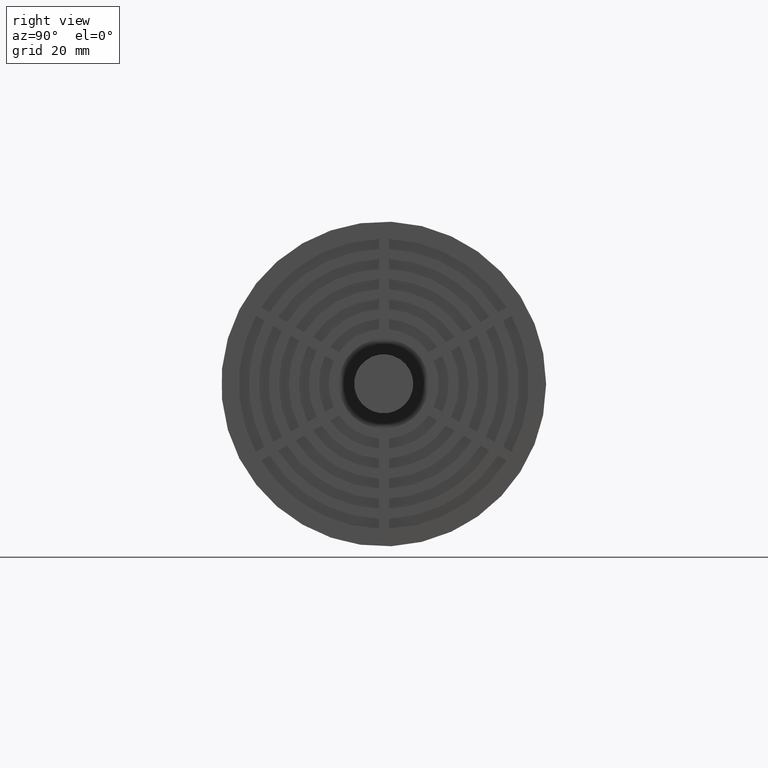
[diagram: clean part render]
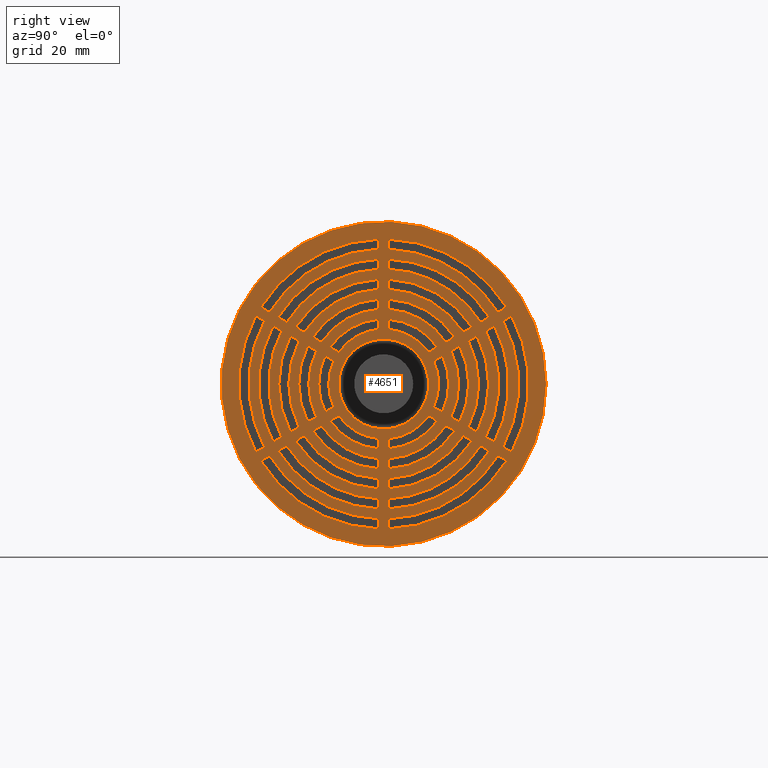
[diagram: same view with one face highlighted and labeled with its STEP entity id]
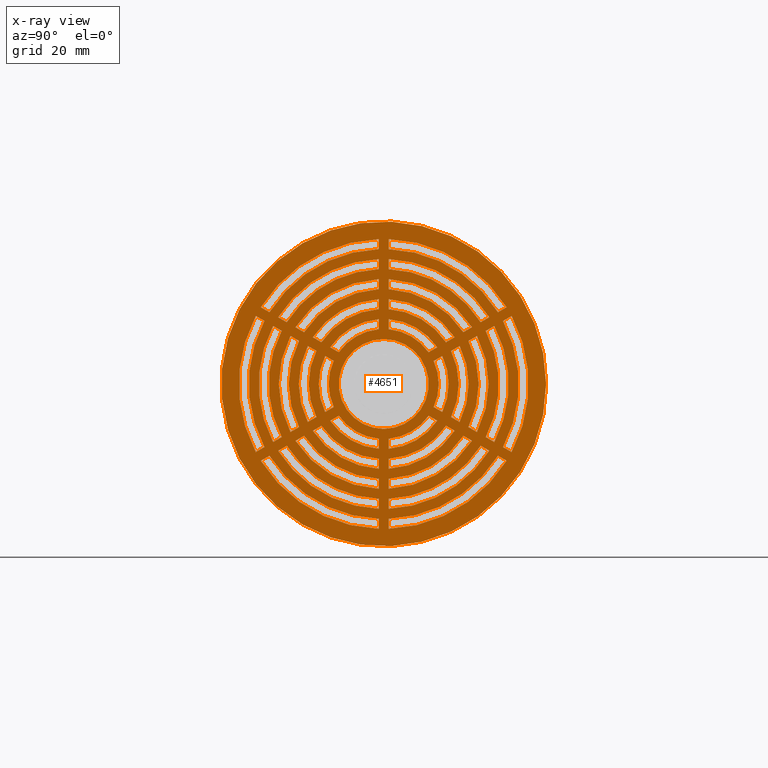
[diagram: x-ray of the same camera — body ghosted, the highlighted face saturated]
A machine part, right view. The second image highlights one B-rep face of the part: STEP entity #4651.
The next image is the same camera in x-ray: the body ghosted, the highlighted face saturated — about 0% of this face is hidden behind the body in this view.
In plain terms, the highlighted planar face has unit normal (1, 0, 0).
Its self-contained STEP definition (entity closure, byte-faithful):
#128=LINE('',#6796,#560);
#134=LINE('',#6808,#566);
#138=LINE('',#6817,#570);
#142=LINE('',#6826,#574);
#146=LINE('',#6835,#578);
#148=LINE('',#6841,#580);
#154=LINE('',#6853,#586);
#156=LINE('',#6859,#588);
#160=LINE('',#6868,#592);
#164=LINE('',#6877,#596);
#168=LINE('',#6886,#600);
#174=LINE('',#6898,#606);
#178=LINE('',#6907,#610);
#182=LINE('',#6916,#614);
#186=LINE('',#6925,#618);
#188=LINE('',#6931,#620);
#194=LINE('',#6943,#626);
#196=LINE('',#6949,#628);
#200=LINE('',#6958,#632);
#204=LINE('',#6967,#636);
#208=LINE('',#6976,#640);
#214=LINE('',#6988,#646);
#218=LINE('',#6997,#650);
#222=LINE('',#7006,#654);
#226=LINE('',#7015,#658);
#228=LINE('',#7021,#660);
#234=LINE('',#7033,#666);
#236=LINE('',#7039,#668);
#240=LINE('',#7048,#672);
#244=LINE('',#7057,#676);
#248=LINE('',#7066,#680);
#254=LINE('',#7078,#686);
#258=LINE('',#7087,#690);
#262=LINE('',#7096,#694);
#266=LINE('',#7105,#698);
#268=LINE('',#7111,#700);
#274=LINE('',#7123,#706);
#276=LINE('',#7129,#708);
#280=LINE('',#7138,#712);
#284=LINE('',#7147,#716);
#288=LINE('',#7156,#720);
#294=LINE('',#7168,#726);
#298=LINE('',#7177,#730);
#302=LINE('',#7186,#734);
#306=LINE('',#7195,#738);
#308=LINE('',#7201,#740);
#314=LINE('',#7213,#746);
#316=LINE('',#7219,#748);
#320=LINE('',#7228,#752);
#324=LINE('',#7237,#756);
#357=LINE('',#7494,#789);
#358=LINE('',#7495,#790);
#359=LINE('',#7496,#791);
#360=LINE('',#7497,#792);
#361=LINE('',#7506,#793);
#362=LINE('',#7507,#794);
#363=LINE('',#7508,#795);
#364=LINE('',#7509,#796);
#365=LINE('',#7510,#797);
#366=LINE('',#7511,#798);
#560=VECTOR('',#5338,2.00127836591479);
#566=VECTOR('',#5346,2.00174140744148);
#570=VECTOR('',#5352,2.00251100239276);
#574=VECTOR('',#5358,2.00393320138137);
#578=VECTOR('',#5364,2.0070302467124);
#580=VECTOR('',#5368,2.00174140744148);
#586=VECTOR('',#5376,2.00127836591479);
#588=VECTOR('',#5380,2.00251100239276);
#592=VECTOR('',#5386,2.00393320138137);
#596=VECTOR('',#5392,2.0070302467124);
#600=VECTOR('',#5398,2.00127836591479);
#606=VECTOR('',#5406,2.00174140744148);
#610=VECTOR('',#5412,2.00251100239275);
#614=VECTOR('',#5418,2.00393320138137);
#618=VECTOR('',#5424,2.0070302467124);
#620=VECTOR('',#5428,2.00174140744148);
#626=VECTOR('',#5436,2.00127836591479);
#628=VECTOR('',#5440,2.00251100239276);
#632=VECTOR('',#5446,2.00393320138137);
#636=VECTOR('',#5452,2.0070302467124);
#640=VECTOR('',#5458,2.00127836591479);
#646=VECTOR('',#5466,2.00174140744148);
#650=VECTOR('',#5472,2.00251100239276);
#654=VECTOR('',#5478,2.00393320138138);
#658=VECTOR('',#5484,2.0070302467124);
#660=VECTOR('',#5488,2.00174140744148);
#666=VECTOR('',#5496,2.00127836591479);
#668=VECTOR('',#5500,2.00251100239276);
#672=VECTOR('',#5506,2.00393320138137);
#676=VECTOR('',#5512,2.0070302467124);
#680=VECTOR('',#5518,2.00127836591479);
#686=VECTOR('',#5526,2.00174140744148);
#690=VECTOR('',#5532,2.00251100239276);
#694=VECTOR('',#5538,2.00393320138138);
#698=VECTOR('',#5544,2.0070302467124);
#700=VECTOR('',#5548,2.00174140744148);
#706=VECTOR('',#5556,2.00127836591479);
#708=VECTOR('',#5560,2.00251100239276);
#712=VECTOR('',#5566,2.00393320138137);
#716=VECTOR('',#5572,2.0070302467124);
#720=VECTOR('',#5578,2.0012783659148);
#726=VECTOR('',#5586,2.00174140744148);
#730=VECTOR('',#5592,2.00251100239276);
#734=VECTOR('',#5598,2.00393320138138);
#738=VECTOR('',#5604,2.0070302467124);
#740=VECTOR('',#5608,2.00174140744148);
#746=VECTOR('',#5616,2.00127836591479);
#748=VECTOR('',#5620,2.00251100239276);
#752=VECTOR('',#5626,2.00393320138138);
#756=VECTOR('',#5632,2.0070302467124);
#789=VECTOR('',#6031,2.0070302467124);
#790=VECTOR('',#6032,2.00393320138137);
#791=VECTOR('',#6033,2.00251100239275);
#792=VECTOR('',#6034,2.00174140744148);
#793=VECTOR('',#6051,2.00127836591479);
#794=VECTOR('',#6052,2.0070302467124);
#795=VECTOR('',#6053,2.00393320138137);
#796=VECTOR('',#6054,2.00127836591479);
#797=VECTOR('',#6055,2.00251100239276);
#798=VECTOR('',#6056,2.00174140744148);
#1070=PLANE('',#5045);
#1165=FACE_BOUND('',#1647,.T.);
#1166=FACE_BOUND('',#1648,.T.);
#1167=FACE_BOUND('',#1649,.T.);
#1168=FACE_BOUND('',#1650,.T.);
#1169=FACE_BOUND('',#1651,.T.);
#1170=FACE_BOUND('',#1652,.T.);
#1171=FACE_BOUND('',#1653,.T.);
#1172=FACE_BOUND('',#1654,.T.);
#1173=FACE_BOUND('',#1655,.T.);
#1174=FACE_BOUND('',#1656,.T.);
#1175=FACE_BOUND('',#1657,.T.);
#1176=FACE_BOUND('',#1658,.T.);
#1177=FACE_BOUND('',#1659,.T.);
#1178=FACE_BOUND('',#1660,.T.);
#1179=FACE_BOUND('',#1661,.T.);
#1180=FACE_BOUND('',#1662,.T.);
#1181=FACE_BOUND('',#1663,.T.);
#1182=FACE_BOUND('',#1664,.T.);
#1183=FACE_BOUND('',#1665,.T.);
#1184=FACE_BOUND('',#1666,.T.);
#1185=FACE_BOUND('',#1667,.T.);
#1186=FACE_BOUND('',#1668,.T.);
#1187=FACE_BOUND('',#1669,.T.);
#1188=FACE_BOUND('',#1670,.T.);
#1189=FACE_BOUND('',#1671,.T.);
#1190=FACE_BOUND('',#1672,.T.);
#1191=FACE_BOUND('',#1673,.T.);
#1192=FACE_BOUND('',#1674,.T.);
#1193=FACE_BOUND('',#1675,.T.);
#1194=FACE_BOUND('',#1676,.T.);
#1195=FACE_BOUND('',#1677,.T.);
#1359=FACE_OUTER_BOUND('',#1646,.T.);
#1646=EDGE_LOOP('',(#3715));
#1647=EDGE_LOOP('',(#3716,#3717,#3718,#3719));
#1648=EDGE_LOOP('',(#3720,#3721,#3722,#3723));
#1649=EDGE_LOOP('',(#3724,#3725,#3726,#3727));
#1650=EDGE_LOOP('',(#3728,#3729,#3730,#3731));
#1651=EDGE_LOOP('',(#3732,#3733,#3734,#3735));
#1652=EDGE_LOOP('',(#3736,#3737,#3738,#3739));
#1653=EDGE_LOOP('',(#3740,#3741,#3742,#3743));
#1654=EDGE_LOOP('',(#3744,#3745,#3746,#3747));
#1655=EDGE_LOOP('',(#3748,#3749,#3750,#3751));
#1656=EDGE_LOOP('',(#3752,#3753,#3754,#3755));
#1657=EDGE_LOOP('',(#3756,#3757,#3758,#3759));
#1658=EDGE_LOOP('',(#3760,#3761,#3762,#3763));
#1659=EDGE_LOOP('',(#3764,#3765,#3766,#3767));
#1660=EDGE_LOOP('',(#3768,#3769,#3770,#3771));
#1661=EDGE_LOOP('',(#3772,#3773,#3774,#3775));
#1662=EDGE_LOOP('',(#3776,#3777,#3778,#3779));
#1663=EDGE_LOOP('',(#3780,#3781,#3782,#3783));
#1664=EDGE_LOOP('',(#3784,#3785,#3786,#3787));
#1665=EDGE_LOOP('',(#3788,#3789,#3790,#3791));
#1666=EDGE_LOOP('',(#3792,#3793,#3794,#3795));
#1667=EDGE_LOOP('',(#3796,#3797,#3798,#3799));
#1668=EDGE_LOOP('',(#3800,#3801,#3802,#3803));
#1669=EDGE_LOOP('',(#3804,#3805,#3806,#3807));
#1670=EDGE_LOOP('',(#3808,#3809,#3810,#3811));
#1671=EDGE_LOOP('',(#3812,#3813,#3814,#3815));
#1672=EDGE_LOOP('',(#3816,#3817,#3818,#3819));
#1673=EDGE_LOOP('',(#3820,#3821,#3822,#3823));
#1674=EDGE_LOOP('',(#3824,#3825,#3826,#3827));
#1675=EDGE_LOOP('',(#3828,#3829,#3830,#3831));
#1676=EDGE_LOOP('',(#3832,#3833,#3834,#3835));
#1677=EDGE_LOOP('',(#3836));
#1865=CIRCLE('',#4812,32.5);
#1867=CIRCLE('',#4865,11.);
#1868=CIRCLE('',#4867,11.);
#1870=CIRCLE('',#4870,11.);
#1872=CIRCLE('',#4873,11.);
#1874=CIRCLE('',#4876,11.);
#1881=CIRCLE('',#4889,13.);
#1882=CIRCLE('',#4891,13.);
#1883=CIRCLE('',#4893,13.);
#1884=CIRCLE('',#4895,13.);
#1885=CIRCLE('',#4897,13.);
#1887=CIRCLE('',#4900,15.);
#1888=CIRCLE('',#4902,15.);
#1890=CIRCLE('',#4905,15.);
#1892=CIRCLE('',#4908,15.);
#1894=CIRCLE('',#4911,15.);
#1901=CIRCLE('',#4924,17.);
#1902=CIRCLE('',#4926,17.);
#1903=CIRCLE('',#4928,17.);
#1904=CIRCLE('',#4930,17.);
#1905=CIRCLE('',#4932,17.);
#1907=CIRCLE('',#4935,19.);
#1908=CIRCLE('',#4937,19.);
#1910=CIRCLE('',#4940,19.);
#1912=CIRCLE('',#4943,19.);
#1914=CIRCLE('',#4946,19.);
#1921=CIRCLE('',#4959,21.);
#1922=CIRCLE('',#4961,21.);
#1923=CIRCLE('',#4963,21.);
#1924=CIRCLE('',#4965,21.);
#1925=CIRCLE('',#4967,21.);
#1927=CIRCLE('',#4970,29.);
#1929=CIRCLE('',#4973,29.);
#1931=CIRCLE('',#4976,29.);
#1933=CIRCLE('',#4979,29.);
#1934=CIRCLE('',#4981,29.);
#1937=CIRCLE('',#4985,29.);
#1939=CIRCLE('',#4988,23.);
#1940=CIRCLE('',#4990,23.);
#1942=CIRCLE('',#4993,23.);
#1944=CIRCLE('',#4996,23.);
#1946=CIRCLE('',#4999,23.);
#1959=CIRCLE('',#5024,27.);
#1960=CIRCLE('',#5026,27.);
#1961=CIRCLE('',#5028,27.);
#1962=CIRCLE('',#5030,27.);
#1963=CIRCLE('',#5032,27.);
#1964=CIRCLE('',#5034,27.);
#1965=CIRCLE('',#5036,25.);
#1966=CIRCLE('',#5038,25.);
#1967=CIRCLE('',#5040,25.);
#1968=CIRCLE('',#5042,25.);
#1969=CIRCLE('',#5044,25.);
#1970=CIRCLE('',#5046,13.);
#1971=CIRCLE('',#5047,11.);
#1972=CIRCLE('',#5048,17.);
#1973=CIRCLE('',#5049,15.);
#1974=CIRCLE('',#5050,21.);
#1975=CIRCLE('',#5051,19.);
#1976=CIRCLE('',#5052,25.);
#1977=CIRCLE('',#5053,23.);
#1978=CIRCLE('',#5054,9.);
#2094=VERTEX_POINT('',#6789);
#2095=VERTEX_POINT('',#6792);
#2097=VERTEX_POINT('',#6795);
#2100=VERTEX_POINT('',#6802);
#2102=VERTEX_POINT('',#6806);
#2104=VERTEX_POINT('',#6811);
#2106=VERTEX_POINT('',#6815);
#2108=VERTEX_POINT('',#6820);
#2110=VERTEX_POINT('',#6824);
#2112=VERTEX_POINT('',#6829);
#2114=VERTEX_POINT('',#6833);
#2115=VERTEX_POINT('',#6837);
#2117=VERTEX_POINT('',#6840);
#2120=VERTEX_POINT('',#6847);
#2122=VERTEX_POINT('',#6851);
#2123=VERTEX_POINT('',#6855);
#2125=VERTEX_POINT('',#6858);
#2127=VERTEX_POINT('',#6864);
#2129=VERTEX_POINT('',#6867);
#2131=VERTEX_POINT('',#6873);
#2133=VERTEX_POINT('',#6876);
#2135=VERTEX_POINT('',#6882);
#2137=VERTEX_POINT('',#6885);
#2140=VERTEX_POINT('',#6892);
#2142=VERTEX_POINT('',#6896);
#2144=VERTEX_POINT('',#6901);
#2146=VERTEX_POINT('',#6905);
#2148=VERTEX_POINT('',#6910);
#2150=VERTEX_POINT('',#6914);
#2152=VERTEX_POINT('',#6919);
#2154=VERTEX_POINT('',#6923);
#2155=VERTEX_POINT('',#6927);
#2157=VERTEX_POINT('',#6930);
#2160=VERTEX_POINT('',#6937);
#2162=VERTEX_POINT('',#6941);
#2163=VERTEX_POINT('',#6945);
#2165=VERTEX_POINT('',#6948);
#2167=VERTEX_POINT('',#6954);
#2169=VERTEX_POINT('',#6957);
#2171=VERTEX_POINT('',#6963);
#2173=VERTEX_POINT('',#6966);
#2175=VERTEX_POINT('',#6972);
#2177=VERTEX_POINT('',#6975);
#2180=VERTEX_POINT('',#6982);
#2182=VERTEX_POINT('',#6986);
#2184=VERTEX_POINT('',#6991);
#2186=VERTEX_POINT('',#6995);
#2188=VERTEX_POINT('',#7000);
#2190=VERTEX_POINT('',#7004);
#2192=VERTEX_POINT('',#7009);
#2194=VERTEX_POINT('',#7013);
#2195=VERTEX_POINT('',#7017);
#2197=VERTEX_POINT('',#7020);
#2200=VERTEX_POINT('',#7027);
#2202=VERTEX_POINT('',#7031);
#2203=VERTEX_POINT('',#7035);
#2205=VERTEX_POINT('',#7038);
#2207=VERTEX_POINT('',#7044);
#2209=VERTEX_POINT('',#7047);
#2211=VERTEX_POINT('',#7053);
#2213=VERTEX_POINT('',#7056);
#2215=VERTEX_POINT('',#7062);
#2217=VERTEX_POINT('',#7065);
#2220=VERTEX_POINT('',#7072);
#2222=VERTEX_POINT('',#7076);
#2224=VERTEX_POINT('',#7081);
#2226=VERTEX_POINT('',#7085);
#2228=VERTEX_POINT('',#7090);
#2230=VERTEX_POINT('',#7094);
#2232=VERTEX_POINT('',#7099);
#2234=VERTEX_POINT('',#7103);
#2235=VERTEX_POINT('',#7107);
#2237=VERTEX_POINT('',#7110);
#2240=VERTEX_POINT('',#7117);
#2242=VERTEX_POINT('',#7121);
#2243=VERTEX_POINT('',#7125);
#2245=VERTEX_POINT('',#7128);
#2247=VERTEX_POINT('',#7134);
#2249=VERTEX_POINT('',#7137);
#2251=VERTEX_POINT('',#7143);
#2253=VERTEX_POINT('',#7146);
#2255=VERTEX_POINT('',#7152);
#2257=VERTEX_POINT('',#7155);
#2260=VERTEX_POINT('',#7162);
#2262=VERTEX_POINT('',#7166);
#2264=VERTEX_POINT('',#7171);
#2266=VERTEX_POINT('',#7175);
#2268=VERTEX_POINT('',#7180);
#2270=VERTEX_POINT('',#7184);
#2272=VERTEX_POINT('',#7189);
#2274=VERTEX_POINT('',#7193);
#2275=VERTEX_POINT('',#7197);
#2277=VERTEX_POINT('',#7200);
#2280=VERTEX_POINT('',#7207);
#2282=VERTEX_POINT('',#7211);
#2283=VERTEX_POINT('',#7215);
#2285=VERTEX_POINT('',#7218);
#2287=VERTEX_POINT('',#7224);
#2289=VERTEX_POINT('',#7227);
#2291=VERTEX_POINT('',#7233);
#2293=VERTEX_POINT('',#7236);
#2296=VERTEX_POINT('',#7244);
#2297=VERTEX_POINT('',#7248);
#2301=VERTEX_POINT('',#7277);
#2302=VERTEX_POINT('',#7281);
#2304=VERTEX_POINT('',#7293);
#2305=VERTEX_POINT('',#7297);
#2309=VERTEX_POINT('',#7326);
#2310=VERTEX_POINT('',#7330);
#2312=VERTEX_POINT('',#7342);
#2313=VERTEX_POINT('',#7346);
#2317=VERTEX_POINT('',#7375);
#2318=VERTEX_POINT('',#7379);
#2320=VERTEX_POINT('',#7391);
#2321=VERTEX_POINT('',#7404);
#2324=VERTEX_POINT('',#7415);
#2325=VERTEX_POINT('',#7419);
#2331=VERTEX_POINT('',#7464);
#2332=VERTEX_POINT('',#7474);
#2333=VERTEX_POINT('',#7480);
#2334=VERTEX_POINT('',#7484);
#2335=VERTEX_POINT('',#7512);
#2539=EDGE_CURVE('',#2094,#2094,#1865,.T.);
#2541=EDGE_CURVE('',#2097,#2095,#128,.T.);
#2547=EDGE_CURVE('',#2100,#2102,#134,.T.);
#2551=EDGE_CURVE('',#2104,#2106,#138,.T.);
#2555=EDGE_CURVE('',#2108,#2110,#142,.T.);
#2559=EDGE_CURVE('',#2112,#2114,#146,.T.);
#2561=EDGE_CURVE('',#2117,#2115,#148,.T.);
#2567=EDGE_CURVE('',#2120,#2122,#154,.T.);
#2569=EDGE_CURVE('',#2125,#2123,#156,.T.);
#2573=EDGE_CURVE('',#2129,#2127,#160,.T.);
#2577=EDGE_CURVE('',#2133,#2131,#164,.T.);
#2581=EDGE_CURVE('',#2137,#2135,#168,.T.);
#2587=EDGE_CURVE('',#2140,#2142,#174,.T.);
#2591=EDGE_CURVE('',#2144,#2146,#178,.T.);
#2595=EDGE_CURVE('',#2148,#2150,#182,.T.);
#2599=EDGE_CURVE('',#2152,#2154,#186,.T.);
#2601=EDGE_CURVE('',#2157,#2155,#188,.T.);
#2607=EDGE_CURVE('',#2160,#2162,#194,.T.);
#2609=EDGE_CURVE('',#2165,#2163,#196,.T.);
#2613=EDGE_CURVE('',#2169,#2167,#200,.T.);
#2617=EDGE_CURVE('',#2173,#2171,#204,.T.);
#2621=EDGE_CURVE('',#2177,#2175,#208,.T.);
#2627=EDGE_CURVE('',#2180,#2182,#214,.T.);
#2631=EDGE_CURVE('',#2184,#2186,#218,.T.);
#2635=EDGE_CURVE('',#2188,#2190,#222,.T.);
#2639=EDGE_CURVE('',#2192,#2194,#226,.T.);
#2641=EDGE_CURVE('',#2197,#2195,#228,.T.);
#2647=EDGE_CURVE('',#2200,#2202,#234,.T.);
#2649=EDGE_CURVE('',#2205,#2203,#236,.T.);
#2653=EDGE_CURVE('',#2209,#2207,#240,.T.);
#2657=EDGE_CURVE('',#2213,#2211,#244,.T.);
#2661=EDGE_CURVE('',#2217,#2215,#248,.T.);
#2667=EDGE_CURVE('',#2220,#2222,#254,.T.);
#2671=EDGE_CURVE('',#2224,#2226,#258,.T.);
#2675=EDGE_CURVE('',#2228,#2230,#262,.T.);
#2679=EDGE_CURVE('',#2232,#2234,#266,.T.);
#2681=EDGE_CURVE('',#2237,#2235,#268,.T.);
#2687=EDGE_CURVE('',#2240,#2242,#274,.T.);
#2689=EDGE_CURVE('',#2245,#2243,#276,.T.);
#2693=EDGE_CURVE('',#2249,#2247,#280,.T.);
#2697=EDGE_CURVE('',#2253,#2251,#284,.T.);
#2701=EDGE_CURVE('',#2257,#2255,#288,.T.);
#2707=EDGE_CURVE('',#2260,#2262,#294,.T.);
#2711=EDGE_CURVE('',#2264,#2266,#298,.T.);
#2715=EDGE_CURVE('',#2268,#2270,#302,.T.);
#2719=EDGE_CURVE('',#2272,#2274,#306,.T.);
#2721=EDGE_CURVE('',#2277,#2275,#308,.T.);
#2727=EDGE_CURVE('',#2280,#2282,#314,.T.);
#2729=EDGE_CURVE('',#2285,#2283,#316,.T.);
#2733=EDGE_CURVE('',#2289,#2287,#320,.T.);
#2737=EDGE_CURVE('',#2293,#2291,#324,.T.);
#2742=EDGE_CURVE('',#2131,#2296,#1867,.T.);
#2743=EDGE_CURVE('',#2297,#2272,#1868,.T.);
#2746=EDGE_CURVE('',#2291,#2232,#1870,.T.);
#2748=EDGE_CURVE('',#2251,#2192,#1872,.T.);
#2750=EDGE_CURVE('',#2211,#2152,#1874,.T.);
#2759=EDGE_CURVE('',#2301,#2133,#1881,.T.);
#2762=EDGE_CURVE('',#2274,#2302,#1882,.T.);
#2763=EDGE_CURVE('',#2234,#2293,#1883,.T.);
#2764=EDGE_CURVE('',#2194,#2253,#1884,.T.);
#2765=EDGE_CURVE('',#2154,#2213,#1885,.T.);
#2768=EDGE_CURVE('',#2127,#2304,#1887,.T.);
#2769=EDGE_CURVE('',#2305,#2268,#1888,.T.);
#2772=EDGE_CURVE('',#2287,#2228,#1890,.T.);
#2774=EDGE_CURVE('',#2247,#2188,#1892,.T.);
#2776=EDGE_CURVE('',#2207,#2148,#1894,.T.);
#2785=EDGE_CURVE('',#2309,#2129,#1901,.T.);
#2788=EDGE_CURVE('',#2270,#2310,#1902,.T.);
#2789=EDGE_CURVE('',#2230,#2289,#1903,.T.);
#2790=EDGE_CURVE('',#2190,#2249,#1904,.T.);
#2791=EDGE_CURVE('',#2150,#2209,#1905,.T.);
#2794=EDGE_CURVE('',#2123,#2312,#1907,.T.);
#2795=EDGE_CURVE('',#2313,#2264,#1908,.T.);
#2798=EDGE_CURVE('',#2283,#2224,#1910,.T.);
#2800=EDGE_CURVE('',#2243,#2184,#1912,.T.);
#2802=EDGE_CURVE('',#2203,#2144,#1914,.T.);
#2811=EDGE_CURVE('',#2317,#2125,#1921,.T.);
#2814=EDGE_CURVE('',#2266,#2318,#1922,.T.);
#2815=EDGE_CURVE('',#2226,#2285,#1923,.T.);
#2816=EDGE_CURVE('',#2186,#2245,#1924,.T.);
#2817=EDGE_CURVE('',#2146,#2205,#1925,.T.);
#2820=EDGE_CURVE('',#2255,#2320,#1927,.T.);
#2822=EDGE_CURVE('',#2215,#2280,#1929,.T.);
#2824=EDGE_CURVE('',#2175,#2240,#1931,.T.);
#2826=EDGE_CURVE('',#2135,#2200,#1933,.T.);
#2827=EDGE_CURVE('',#2321,#2120,#1934,.T.);
#2831=EDGE_CURVE('',#2095,#2160,#1937,.T.);
#2834=EDGE_CURVE('',#2115,#2324,#1939,.T.);
#2835=EDGE_CURVE('',#2325,#2260,#1940,.T.);
#2838=EDGE_CURVE('',#2275,#2220,#1942,.T.);
#2840=EDGE_CURVE('',#2235,#2180,#1944,.T.);
#2842=EDGE_CURVE('',#2195,#2140,#1946,.T.);
#2859=EDGE_CURVE('',#2331,#2257,#1959,.T.);
#2861=EDGE_CURVE('',#2282,#2217,#1960,.T.);
#2862=EDGE_CURVE('',#2242,#2177,#1961,.T.);
#2863=EDGE_CURVE('',#2202,#2137,#1962,.T.);
#2865=EDGE_CURVE('',#2122,#2332,#1963,.T.);
#2866=EDGE_CURVE('',#2162,#2097,#1964,.T.);
#2867=EDGE_CURVE('',#2333,#2117,#1965,.T.);
#2870=EDGE_CURVE('',#2262,#2334,#1966,.T.);
#2871=EDGE_CURVE('',#2222,#2277,#1967,.T.);
#2872=EDGE_CURVE('',#2182,#2237,#1968,.T.);
#2873=EDGE_CURVE('',#2142,#2197,#1969,.T.);
#2874=EDGE_CURVE('',#2296,#2301,#357,.T.);
#2875=EDGE_CURVE('',#2304,#2309,#358,.T.);
#2876=EDGE_CURVE('',#2312,#2317,#359,.T.);
#2877=EDGE_CURVE('',#2324,#2333,#360,.T.);
#2878=EDGE_CURVE('',#2114,#2173,#1970,.T.);
#2879=EDGE_CURVE('',#2171,#2112,#1971,.T.);
#2880=EDGE_CURVE('',#2110,#2169,#1972,.T.);
#2881=EDGE_CURVE('',#2167,#2108,#1973,.T.);
#2882=EDGE_CURVE('',#2106,#2165,#1974,.T.);
#2883=EDGE_CURVE('',#2163,#2104,#1975,.T.);
#2884=EDGE_CURVE('',#2102,#2157,#1976,.T.);
#2885=EDGE_CURVE('',#2155,#2100,#1977,.T.);
#2886=EDGE_CURVE('',#2320,#2331,#361,.T.);
#2887=EDGE_CURVE('',#2302,#2297,#362,.T.);
#2888=EDGE_CURVE('',#2310,#2305,#363,.T.);
#2889=EDGE_CURVE('',#2332,#2321,#364,.T.);
#2890=EDGE_CURVE('',#2318,#2313,#365,.T.);
#2891=EDGE_CURVE('',#2334,#2325,#366,.T.);
#2892=EDGE_CURVE('',#2335,#2335,#1978,.T.);
#3715=ORIENTED_EDGE('',*,*,#2539,.T.);
#3716=ORIENTED_EDGE('',*,*,#2742,.T.);
#3717=ORIENTED_EDGE('',*,*,#2874,.T.);
#3718=ORIENTED_EDGE('',*,*,#2759,.T.);
#3719=ORIENTED_EDGE('',*,*,#2577,.T.);
#3720=ORIENTED_EDGE('',*,*,#2768,.T.);
#3721=ORIENTED_EDGE('',*,*,#2875,.T.);
#3722=ORIENTED_EDGE('',*,*,#2785,.T.);
#3723=ORIENTED_EDGE('',*,*,#2573,.T.);
#3724=ORIENTED_EDGE('',*,*,#2794,.T.);
#3725=ORIENTED_EDGE('',*,*,#2876,.T.);
#3726=ORIENTED_EDGE('',*,*,#2811,.T.);
#3727=ORIENTED_EDGE('',*,*,#2569,.T.);
#3728=ORIENTED_EDGE('',*,*,#2831,.T.);
#3729=ORIENTED_EDGE('',*,*,#2607,.T.);
#3730=ORIENTED_EDGE('',*,*,#2866,.T.);
#3731=ORIENTED_EDGE('',*,*,#2541,.T.);
#3732=ORIENTED_EDGE('',*,*,#2834,.T.);
#3733=ORIENTED_EDGE('',*,*,#2877,.T.);
#3734=ORIENTED_EDGE('',*,*,#2867,.T.);
#3735=ORIENTED_EDGE('',*,*,#2561,.T.);
#3736=ORIENTED_EDGE('',*,*,#2559,.T.);
#3737=ORIENTED_EDGE('',*,*,#2878,.T.);
#3738=ORIENTED_EDGE('',*,*,#2617,.T.);
#3739=ORIENTED_EDGE('',*,*,#2879,.T.);
#3740=ORIENTED_EDGE('',*,*,#2555,.T.);
#3741=ORIENTED_EDGE('',*,*,#2880,.T.);
#3742=ORIENTED_EDGE('',*,*,#2613,.T.);
#3743=ORIENTED_EDGE('',*,*,#2881,.T.);
#3744=ORIENTED_EDGE('',*,*,#2551,.T.);
#3745=ORIENTED_EDGE('',*,*,#2882,.T.);
#3746=ORIENTED_EDGE('',*,*,#2609,.T.);
#3747=ORIENTED_EDGE('',*,*,#2883,.T.);
#3748=ORIENTED_EDGE('',*,*,#2826,.T.);
#3749=ORIENTED_EDGE('',*,*,#2647,.T.);
#3750=ORIENTED_EDGE('',*,*,#2863,.T.);
#3751=ORIENTED_EDGE('',*,*,#2581,.T.);
#3752=ORIENTED_EDGE('',*,*,#2547,.T.);
#3753=ORIENTED_EDGE('',*,*,#2884,.T.);
#3754=ORIENTED_EDGE('',*,*,#2601,.T.);
#3755=ORIENTED_EDGE('',*,*,#2885,.T.);
#3756=ORIENTED_EDGE('',*,*,#2599,.T.);
#3757=ORIENTED_EDGE('',*,*,#2765,.T.);
#3758=ORIENTED_EDGE('',*,*,#2657,.T.);
#3759=ORIENTED_EDGE('',*,*,#2750,.T.);
#3760=ORIENTED_EDGE('',*,*,#2595,.T.);
#3761=ORIENTED_EDGE('',*,*,#2791,.T.);
#3762=ORIENTED_EDGE('',*,*,#2653,.T.);
#3763=ORIENTED_EDGE('',*,*,#2776,.T.);
#3764=ORIENTED_EDGE('',*,*,#2591,.T.);
#3765=ORIENTED_EDGE('',*,*,#2817,.T.);
#3766=ORIENTED_EDGE('',*,*,#2649,.T.);
#3767=ORIENTED_EDGE('',*,*,#2802,.T.);
#3768=ORIENTED_EDGE('',*,*,#2824,.T.);
#3769=ORIENTED_EDGE('',*,*,#2687,.T.);
#3770=ORIENTED_EDGE('',*,*,#2862,.T.);
#3771=ORIENTED_EDGE('',*,*,#2621,.T.);
#3772=ORIENTED_EDGE('',*,*,#2587,.T.);
#3773=ORIENTED_EDGE('',*,*,#2873,.T.);
#3774=ORIENTED_EDGE('',*,*,#2641,.T.);
#3775=ORIENTED_EDGE('',*,*,#2842,.T.);
#3776=ORIENTED_EDGE('',*,*,#2639,.T.);
#3777=ORIENTED_EDGE('',*,*,#2764,.T.);
#3778=ORIENTED_EDGE('',*,*,#2697,.T.);
#3779=ORIENTED_EDGE('',*,*,#2748,.T.);
#3780=ORIENTED_EDGE('',*,*,#2635,.T.);
#3781=ORIENTED_EDGE('',*,*,#2790,.T.);
#3782=ORIENTED_EDGE('',*,*,#2693,.T.);
#3783=ORIENTED_EDGE('',*,*,#2774,.T.);
#3784=ORIENTED_EDGE('',*,*,#2631,.T.);
#3785=ORIENTED_EDGE('',*,*,#2816,.T.);
#3786=ORIENTED_EDGE('',*,*,#2689,.T.);
#3787=ORIENTED_EDGE('',*,*,#2800,.T.);
#3788=ORIENTED_EDGE('',*,*,#2822,.T.);
#3789=ORIENTED_EDGE('',*,*,#2727,.T.);
#3790=ORIENTED_EDGE('',*,*,#2861,.T.);
#3791=ORIENTED_EDGE('',*,*,#2661,.T.);
#3792=ORIENTED_EDGE('',*,*,#2627,.T.);
#3793=ORIENTED_EDGE('',*,*,#2872,.T.);
#3794=ORIENTED_EDGE('',*,*,#2681,.T.);
#3795=ORIENTED_EDGE('',*,*,#2840,.T.);
#3796=ORIENTED_EDGE('',*,*,#2679,.T.);
#3797=ORIENTED_EDGE('',*,*,#2763,.T.);
#3798=ORIENTED_EDGE('',*,*,#2737,.T.);
#3799=ORIENTED_EDGE('',*,*,#2746,.T.);
#3800=ORIENTED_EDGE('',*,*,#2675,.T.);
#3801=ORIENTED_EDGE('',*,*,#2789,.T.);
#3802=ORIENTED_EDGE('',*,*,#2733,.T.);
#3803=ORIENTED_EDGE('',*,*,#2772,.T.);
#3804=ORIENTED_EDGE('',*,*,#2671,.T.);
#3805=ORIENTED_EDGE('',*,*,#2815,.T.);
#3806=ORIENTED_EDGE('',*,*,#2729,.T.);
#3807=ORIENTED_EDGE('',*,*,#2798,.T.);
#3808=ORIENTED_EDGE('',*,*,#2820,.T.);
#3809=ORIENTED_EDGE('',*,*,#2886,.T.);
#3810=ORIENTED_EDGE('',*,*,#2859,.T.);
#3811=ORIENTED_EDGE('',*,*,#2701,.T.);
#3812=ORIENTED_EDGE('',*,*,#2667,.T.);
#3813=ORIENTED_EDGE('',*,*,#2871,.T.);
#3814=ORIENTED_EDGE('',*,*,#2721,.T.);
#3815=ORIENTED_EDGE('',*,*,#2838,.T.);
#3816=ORIENTED_EDGE('',*,*,#2719,.T.);
#3817=ORIENTED_EDGE('',*,*,#2762,.T.);
#3818=ORIENTED_EDGE('',*,*,#2887,.T.);
#3819=ORIENTED_EDGE('',*,*,#2743,.T.);
#3820=ORIENTED_EDGE('',*,*,#2715,.T.);
#3821=ORIENTED_EDGE('',*,*,#2788,.T.);
#3822=ORIENTED_EDGE('',*,*,#2888,.T.);
#3823=ORIENTED_EDGE('',*,*,#2769,.T.);
#3824=ORIENTED_EDGE('',*,*,#2567,.T.);
#3825=ORIENTED_EDGE('',*,*,#2865,.T.);
#3826=ORIENTED_EDGE('',*,*,#2889,.T.);
#3827=ORIENTED_EDGE('',*,*,#2827,.T.);
#3828=ORIENTED_EDGE('',*,*,#2711,.T.);
#3829=ORIENTED_EDGE('',*,*,#2814,.T.);
#3830=ORIENTED_EDGE('',*,*,#2890,.T.);
#3831=ORIENTED_EDGE('',*,*,#2795,.T.);
#3832=ORIENTED_EDGE('',*,*,#2707,.T.);
#3833=ORIENTED_EDGE('',*,*,#2870,.T.);
#3834=ORIENTED_EDGE('',*,*,#2891,.T.);
#3835=ORIENTED_EDGE('',*,*,#2835,.T.);
#3836=ORIENTED_EDGE('',*,*,#2892,.T.);
#4651=ADVANCED_FACE('',(#1359,#1165,#1166,#1167,#1168,#1169,#1170,#1171,
#1172,#1173,#1174,#1175,#1176,#1177,#1178,#1179,#1180,#1181,#1182,#1183,
#1184,#1185,#1186,#1187,#1188,#1189,#1190,#1191,#1192,#1193,#1194,#1195),
#1070,.T.);
#4812=AXIS2_PLACEMENT_3D('',#6790,#5333,#5334);
#4865=AXIS2_PLACEMENT_3D('',#7246,#5640,#5641);
#4867=AXIS2_PLACEMENT_3D('',#7249,#5644,#5645);
#4870=AXIS2_PLACEMENT_3D('',#7254,#5651,#5652);
#4873=AXIS2_PLACEMENT_3D('',#7257,#5657,#5658);
#4876=AXIS2_PLACEMENT_3D('',#7260,#5663,#5664);
#4889=AXIS2_PLACEMENT_3D('',#7278,#5691,#5692);
#4891=AXIS2_PLACEMENT_3D('',#7283,#5697,#5698);
#4893=AXIS2_PLACEMENT_3D('',#7285,#5701,#5702);
#4895=AXIS2_PLACEMENT_3D('',#7287,#5705,#5706);
#4897=AXIS2_PLACEMENT_3D('',#7289,#5709,#5710);
#4900=AXIS2_PLACEMENT_3D('',#7295,#5716,#5717);
#4902=AXIS2_PLACEMENT_3D('',#7298,#5720,#5721);
#4905=AXIS2_PLACEMENT_3D('',#7303,#5727,#5728);
#4908=AXIS2_PLACEMENT_3D('',#7306,#5733,#5734);
#4911=AXIS2_PLACEMENT_3D('',#7309,#5739,#5740);
#4924=AXIS2_PLACEMENT_3D('',#7327,#5767,#5768);
#4926=AXIS2_PLACEMENT_3D('',#7332,#5773,#5774);
#4928=AXIS2_PLACEMENT_3D('',#7334,#5777,#5778);
#4930=AXIS2_PLACEMENT_3D('',#7336,#5781,#5782);
#4932=AXIS2_PLACEMENT_3D('',#7338,#5785,#5786);
#4935=AXIS2_PLACEMENT_3D('',#7344,#5792,#5793);
#4937=AXIS2_PLACEMENT_3D('',#7347,#5796,#5797);
#4940=AXIS2_PLACEMENT_3D('',#7352,#5803,#5804);
#4943=AXIS2_PLACEMENT_3D('',#7355,#5809,#5810);
#4946=AXIS2_PLACEMENT_3D('',#7358,#5815,#5816);
#4959=AXIS2_PLACEMENT_3D('',#7376,#5843,#5844);
#4961=AXIS2_PLACEMENT_3D('',#7381,#5849,#5850);
#4963=AXIS2_PLACEMENT_3D('',#7383,#5853,#5854);
#4965=AXIS2_PLACEMENT_3D('',#7385,#5857,#5858);
#4967=AXIS2_PLACEMENT_3D('',#7387,#5861,#5862);
#4970=AXIS2_PLACEMENT_3D('',#7393,#5868,#5869);
#4973=AXIS2_PLACEMENT_3D('',#7396,#5874,#5875);
#4976=AXIS2_PLACEMENT_3D('',#7399,#5880,#5881);
#4979=AXIS2_PLACEMENT_3D('',#7402,#5886,#5887);
#4981=AXIS2_PLACEMENT_3D('',#7405,#5890,#5891);
#4985=AXIS2_PLACEMENT_3D('',#7411,#5899,#5900);
#4988=AXIS2_PLACEMENT_3D('',#7417,#5906,#5907);
#4990=AXIS2_PLACEMENT_3D('',#7420,#5910,#5911);
#4993=AXIS2_PLACEMENT_3D('',#7425,#5917,#5918);
#4996=AXIS2_PLACEMENT_3D('',#7428,#5923,#5924);
#4999=AXIS2_PLACEMENT_3D('',#7431,#5929,#5930);
#5024=AXIS2_PLACEMENT_3D('',#7465,#5983,#5984);
#5026=AXIS2_PLACEMENT_3D('',#7468,#5988,#5989);
#5028=AXIS2_PLACEMENT_3D('',#7470,#5992,#5993);
#5030=AXIS2_PLACEMENT_3D('',#7472,#5996,#5997);
#5032=AXIS2_PLACEMENT_3D('',#7476,#6001,#6002);
#5034=AXIS2_PLACEMENT_3D('',#7478,#6005,#6006);
#5036=AXIS2_PLACEMENT_3D('',#7481,#6009,#6010);
#5038=AXIS2_PLACEMENT_3D('',#7486,#6015,#6016);
#5040=AXIS2_PLACEMENT_3D('',#7488,#6019,#6020);
#5042=AXIS2_PLACEMENT_3D('',#7490,#6023,#6024);
#5044=AXIS2_PLACEMENT_3D('',#7492,#6027,#6028);
#5045=AXIS2_PLACEMENT_3D('',#7493,#6029,#6030);
#5046=AXIS2_PLACEMENT_3D('',#7498,#6035,#6036);
#5047=AXIS2_PLACEMENT_3D('',#7499,#6037,#6038);
#5048=AXIS2_PLACEMENT_3D('',#7500,#6039,#6040);
#5049=AXIS2_PLACEMENT_3D('',#7501,#6041,#6042);
#5050=AXIS2_PLACEMENT_3D('',#7502,#6043,#6044);
#5051=AXIS2_PLACEMENT_3D('',#7503,#6045,#6046);
#5052=AXIS2_PLACEMENT_3D('',#7504,#6047,#6048);
#5053=AXIS2_PLACEMENT_3D('',#7505,#6049,#6050);
#5054=AXIS2_PLACEMENT_3D('',#7513,#6057,#6058);
#5333=DIRECTION('center_axis',(1.,1.83697019872103E-16,0.));
#5334=DIRECTION('ref_axis',(0.,0.,-1.));
#5338=DIRECTION('',(2.29437743644163E-32,0.866025403784439,0.499999999999999));
#5346=DIRECTION('',(2.29437743644163E-32,0.866025403784439,0.499999999999999));
#5352=DIRECTION('',(2.29437743644163E-32,0.866025403784439,0.499999999999999));
#5358=DIRECTION('',(2.29437743644163E-32,0.866025403784439,0.499999999999999));
#5364=DIRECTION('',(2.29437743644163E-32,0.866025403784439,0.499999999999999));
#5368=DIRECTION('',(2.29437743644163E-32,-0.866025403784439,-0.499999999999999));
#5376=DIRECTION('',(2.29437743644163E-32,-0.866025403784439,-0.499999999999999));
#5380=DIRECTION('',(2.29437743644163E-32,-0.866025403784439,-0.499999999999999));
#5386=DIRECTION('',(2.29437743644163E-32,-0.866025403784439,-0.499999999999999));
#5392=DIRECTION('',(2.29437743644163E-32,-0.866025403784439,-0.499999999999999));
#5398=DIRECTION('',(2.29437743644163E-32,0.866025403784438,-0.5));
#5406=DIRECTION('',(2.29437743644163E-32,0.866025403784438,-0.5));
#5412=DIRECTION('',(2.29437743644163E-32,0.866025403784438,-0.5));
#5418=DIRECTION('',(2.29437743644163E-32,0.866025403784439,-0.5));
#5424=DIRECTION('',(2.29437743644163E-32,0.866025403784438,-0.5));
#5428=DIRECTION('',(2.29437743644163E-32,-0.866025403784438,0.500000000000001));
#5436=DIRECTION('',(2.29437743644163E-32,-0.866025403784438,0.500000000000001));
#5440=DIRECTION('',(2.29437743644163E-32,-0.866025403784438,0.500000000000001));
#5446=DIRECTION('',(2.29437743644163E-32,-0.866025403784438,0.500000000000001));
#5452=DIRECTION('',(2.29437743644163E-32,-0.866025403784438,0.500000000000001));
#5458=DIRECTION('',(2.29437743644163E-32,0.,-1.));
#5466=DIRECTION('',(2.29437743644163E-32,0.,-1.));
#5472=DIRECTION('',(2.29437743644163E-32,0.,-1.));
#5478=DIRECTION('',(2.29437743644163E-32,0.,-1.));
#5484=DIRECTION('',(2.29437743644163E-32,0.,-1.));
#5488=DIRECTION('',(2.29437743644163E-32,3.33066907387547E-16,1.));
#5496=DIRECTION('',(2.29437743644163E-32,3.33066907387547E-16,1.));
#5500=DIRECTION('',(2.29437743644163E-32,3.33066907387547E-16,1.));
#5506=DIRECTION('',(2.29437743644163E-32,3.33066907387547E-16,1.));
#5512=DIRECTION('',(2.29437743644163E-32,3.33066907387547E-16,1.));
#5518=DIRECTION('',(2.29437743644163E-32,-0.866025403784439,-0.5));
#5526=DIRECTION('',(2.29437743644163E-32,-0.866025403784439,-0.5));
#5532=DIRECTION('',(2.29437743644163E-32,-0.866025403784439,-0.5));
#5538=DIRECTION('',(2.29437743644163E-32,-0.866025403784439,-0.5));
#5544=DIRECTION('',(2.29437743644163E-32,-0.866025403784439,-0.5));
#5548=DIRECTION('',(2.29437743644163E-32,0.866025403784439,0.5));
#5556=DIRECTION('',(2.29437743644163E-32,0.866025403784439,0.5));
#5560=DIRECTION('',(2.29437743644163E-32,0.866025403784439,0.5));
#5566=DIRECTION('',(2.29437743644163E-32,0.866025403784439,0.5));
#5572=DIRECTION('',(2.29437743644163E-32,0.866025403784439,0.5));
#5578=DIRECTION('',(2.29437743644163E-32,-0.866025403784439,0.5));
#5586=DIRECTION('',(2.29437743644163E-32,-0.866025403784439,0.5));
#5592=DIRECTION('',(2.29437743644163E-32,-0.866025403784439,0.5));
#5598=DIRECTION('',(2.29437743644163E-32,-0.866025403784439,0.5));
#5604=DIRECTION('',(2.29437743644163E-32,-0.866025403784439,0.5));
#5608=DIRECTION('',(2.29437743644163E-32,0.866025403784439,-0.5));
#5616=DIRECTION('',(2.29437743644163E-32,0.866025403784438,-0.5));
#5620=DIRECTION('',(2.29437743644163E-32,0.866025403784439,-0.5));
#5626=DIRECTION('',(2.29437743644163E-32,0.866025403784439,-0.5));
#5632=DIRECTION('',(2.29437743644163E-32,0.866025403784439,-0.5));
#5640=DIRECTION('center_axis',(1.,1.83697019872103E-16,0.));
#5641=DIRECTION('ref_axis',(0.,0.,1.));
#5644=DIRECTION('center_axis',(1.,1.83697019872103E-16,0.));
#5645=DIRECTION('ref_axis',(0.,0.,1.));
#5651=DIRECTION('center_axis',(1.,1.83697019872103E-16,0.));
#5652=DIRECTION('ref_axis',(0.,0.,1.));
#5657=DIRECTION('center_axis',(1.,1.83697019872103E-16,0.));
#5658=DIRECTION('ref_axis',(0.,0.,1.));
#5663=DIRECTION('center_axis',(1.,1.83697019872103E-16,0.));
#5664=DIRECTION('ref_axis',(0.,0.,1.));
#5691=DIRECTION('center_axis',(-1.,-1.83697019872103E-16,0.));
#5692=DIRECTION('ref_axis',(0.,0.,1.));
#5697=DIRECTION('center_axis',(-1.,-1.83697019872103E-16,0.));
#5698=DIRECTION('ref_axis',(0.,0.,1.));
#5701=DIRECTION('center_axis',(-1.,-1.83697019872103E-16,0.));
#5702=DIRECTION('ref_axis',(0.,0.,1.));
#5705=DIRECTION('center_axis',(-1.,-1.83697019872103E-16,0.));
#5706=DIRECTION('ref_axis',(0.,0.,1.));
#5709=DIRECTION('center_axis',(-1.,-1.83697019872103E-16,0.));
#5710=DIRECTION('ref_axis',(0.,0.,1.));
#5716=DIRECTION('center_axis',(1.,1.83697019872103E-16,0.));
#5717=DIRECTION('ref_axis',(0.,0.,1.));
#5720=DIRECTION('center_axis',(1.,1.83697019872103E-16,0.));
#5721=DIRECTION('ref_axis',(0.,0.,1.));
#5727=DIRECTION('center_axis',(1.,1.83697019872103E-16,0.));
#5728=DIRECTION('ref_axis',(0.,0.,1.));
#5733=DIRECTION('center_axis',(1.,1.83697019872103E-16,0.));
#5734=DIRECTION('ref_axis',(0.,0.,1.));
#5739=DIRECTION('center_axis',(1.,1.83697019872103E-16,0.));
#5740=DIRECTION('ref_axis',(0.,0.,1.));
#5767=DIRECTION('center_axis',(-1.,-1.83697019872103E-16,0.));
#5768=DIRECTION('ref_axis',(0.,0.,1.));
#5773=DIRECTION('center_axis',(-1.,-1.83697019872103E-16,0.));
#5774=DIRECTION('ref_axis',(0.,0.,1.));
#5777=DIRECTION('center_axis',(-1.,-1.83697019872103E-16,0.));
#5778=DIRECTION('ref_axis',(0.,0.,1.));
#5781=DIRECTION('center_axis',(-1.,-1.83697019872103E-16,0.));
#5782=DIRECTION('ref_axis',(0.,0.,1.));
#5785=DIRECTION('center_axis',(-1.,-1.83697019872103E-16,0.));
#5786=DIRECTION('ref_axis',(0.,0.,1.));
#5792=DIRECTION('center_axis',(1.,1.83697019872103E-16,0.));
#5793=DIRECTION('ref_axis',(0.,0.,1.));
#5796=DIRECTION('center_axis',(1.,1.83697019872103E-16,0.));
#5797=DIRECTION('ref_axis',(0.,0.,1.));
#5803=DIRECTION('center_axis',(1.,1.83697019872103E-16,0.));
#5804=DIRECTION('ref_axis',(0.,0.,1.));
#5809=DIRECTION('center_axis',(1.,1.83697019872103E-16,0.));
#5810=DIRECTION('ref_axis',(0.,0.,1.));
#5815=DIRECTION('center_axis',(1.,1.83697019872103E-16,0.));
#5816=DIRECTION('ref_axis',(0.,0.,1.));
#5843=DIRECTION('center_axis',(-1.,-1.83697019872103E-16,0.));
#5844=DIRECTION('ref_axis',(0.,0.,1.));
#5849=DIRECTION('center_axis',(-1.,-1.83697019872103E-16,0.));
#5850=DIRECTION('ref_axis',(0.,0.,1.));
#5853=DIRECTION('center_axis',(-1.,-1.83697019872103E-16,0.));
#5854=DIRECTION('ref_axis',(0.,0.,1.));
#5857=DIRECTION('center_axis',(-1.,-1.83697019872103E-16,0.));
#5858=DIRECTION('ref_axis',(0.,0.,1.));
#5861=DIRECTION('center_axis',(-1.,-1.83697019872103E-16,0.));
#5862=DIRECTION('ref_axis',(0.,0.,1.));
#5868=DIRECTION('center_axis',(-1.,-1.83697019872103E-16,0.));
#5869=DIRECTION('ref_axis',(0.,0.,1.));
#5874=DIRECTION('center_axis',(-1.,-1.83697019872103E-16,0.));
#5875=DIRECTION('ref_axis',(0.,0.,1.));
#5880=DIRECTION('center_axis',(-1.,-1.83697019872103E-16,0.));
#5881=DIRECTION('ref_axis',(0.,0.,1.));
#5886=DIRECTION('center_axis',(-1.,-1.83697019872103E-16,0.));
#5887=DIRECTION('ref_axis',(0.,0.,1.));
#5890=DIRECTION('center_axis',(-1.,-1.83697019872103E-16,0.));
#5891=DIRECTION('ref_axis',(0.,0.,1.));
#5899=DIRECTION('center_axis',(-1.,-1.83697019872103E-16,0.));
#5900=DIRECTION('ref_axis',(0.,0.,1.));
#5906=DIRECTION('center_axis',(1.,1.83697019872103E-16,0.));
#5907=DIRECTION('ref_axis',(0.,0.,1.));
#5910=DIRECTION('center_axis',(1.,1.83697019872103E-16,0.));
#5911=DIRECTION('ref_axis',(0.,0.,1.));
#5917=DIRECTION('center_axis',(1.,1.83697019872103E-16,0.));
#5918=DIRECTION('ref_axis',(0.,0.,1.));
#5923=DIRECTION('center_axis',(1.,1.83697019872103E-16,0.));
#5924=DIRECTION('ref_axis',(0.,0.,1.));
#5929=DIRECTION('center_axis',(1.,1.83697019872103E-16,0.));
#5930=DIRECTION('ref_axis',(0.,0.,1.));
#5983=DIRECTION('center_axis',(1.,1.83697019872103E-16,0.));
#5984=DIRECTION('ref_axis',(0.,0.,1.));
#5988=DIRECTION('center_axis',(1.,1.83697019872103E-16,0.));
#5989=DIRECTION('ref_axis',(0.,0.,1.));
#5992=DIRECTION('center_axis',(1.,1.83697019872103E-16,0.));
#5993=DIRECTION('ref_axis',(0.,0.,1.));
#5996=DIRECTION('center_axis',(1.,1.83697019872103E-16,0.));
#5997=DIRECTION('ref_axis',(0.,0.,1.));
#6001=DIRECTION('center_axis',(1.,1.83697019872103E-16,0.));
#6002=DIRECTION('ref_axis',(0.,0.,1.));
#6005=DIRECTION('center_axis',(1.,1.83697019872103E-16,0.));
#6006=DIRECTION('ref_axis',(0.,0.,1.));
#6009=DIRECTION('center_axis',(-1.,-1.83697019872103E-16,0.));
#6010=DIRECTION('ref_axis',(0.,0.,1.));
#6015=DIRECTION('center_axis',(-1.,-1.83697019872103E-16,0.));
#6016=DIRECTION('ref_axis',(0.,0.,1.));
#6019=DIRECTION('center_axis',(-1.,-1.83697019872103E-16,0.));
#6020=DIRECTION('ref_axis',(0.,0.,1.));
#6023=DIRECTION('center_axis',(-1.,-1.83697019872103E-16,0.));
#6024=DIRECTION('ref_axis',(0.,0.,1.));
#6027=DIRECTION('center_axis',(-1.,-1.83697019872103E-16,0.));
#6028=DIRECTION('ref_axis',(0.,0.,1.));
#6029=DIRECTION('center_axis',(1.,1.83697019872103E-16,0.));
#6030=DIRECTION('ref_axis',(0.,0.,-1.));
#6031=DIRECTION('',(2.29437743644163E-32,-1.2490009027033E-16,1.));
#6032=DIRECTION('',(2.29437743644163E-32,-1.2490009027033E-16,1.));
#6033=DIRECTION('',(2.29437743644163E-32,-1.2490009027033E-16,1.));
#6034=DIRECTION('',(2.29437743644163E-32,-1.2490009027033E-16,1.));
#6035=DIRECTION('center_axis',(-1.,-1.83697019872103E-16,0.));
#6036=DIRECTION('ref_axis',(0.,0.,1.));
#6037=DIRECTION('center_axis',(1.,1.83697019872103E-16,0.));
#6038=DIRECTION('ref_axis',(0.,0.,1.));
#6039=DIRECTION('center_axis',(-1.,-1.83697019872103E-16,0.));
#6040=DIRECTION('ref_axis',(0.,0.,1.));
#6041=DIRECTION('center_axis',(1.,1.83697019872103E-16,0.));
#6042=DIRECTION('ref_axis',(0.,0.,1.));
#6043=DIRECTION('center_axis',(-1.,-1.83697019872103E-16,0.));
#6044=DIRECTION('ref_axis',(0.,0.,1.));
#6045=DIRECTION('center_axis',(1.,1.83697019872103E-16,0.));
#6046=DIRECTION('ref_axis',(0.,0.,1.));
#6047=DIRECTION('center_axis',(-1.,-1.83697019872103E-16,0.));
#6048=DIRECTION('ref_axis',(0.,0.,1.));
#6049=DIRECTION('center_axis',(1.,1.83697019872103E-16,0.));
#6050=DIRECTION('ref_axis',(0.,0.,1.));
#6051=DIRECTION('',(2.29437743644163E-32,-1.2490009027033E-16,-1.));
#6052=DIRECTION('',(2.29437743644163E-32,-1.2490009027033E-16,-1.));
#6053=DIRECTION('',(2.29437743644163E-32,-1.2490009027033E-16,-1.));
#6054=DIRECTION('',(2.29437743644163E-32,-1.2490009027033E-16,1.));
#6055=DIRECTION('',(2.29437743644163E-32,-1.2490009027033E-16,-1.));
#6056=DIRECTION('',(2.29437743644163E-32,-1.2490009027033E-16,-1.));
#6057=DIRECTION('center_axis',(-1.,-1.83697019872103E-16,0.));
#6058=DIRECTION('ref_axis',(0.,0.,1.));
#6789=CARTESIAN_POINT('',(22.5,32.5,0.));
#6790=CARTESIAN_POINT('Origin',(22.5,1.46039130798322E-14,0.));
#6792=CARTESIAN_POINT('',(22.5,25.5998007960223,13.625351342405));
#6795=CARTESIAN_POINT('',(22.5,23.8666428910959,12.6247121594476));
#6796=CARTESIAN_POINT('',(22.5,9.1602540378444,4.13397459621556));
#6802=CARTESIAN_POINT('',(22.5,20.3997487421324,10.6230998892916));
#6806=CARTESIAN_POINT('',(22.5,22.133307652784,11.6239705930123));
#6808=CARTESIAN_POINT('',(22.5,9.1602540378444,4.13397459621556));
#6811=CARTESIAN_POINT('',(22.5,16.931676725155,8.62080757672068));
#6815=CARTESIAN_POINT('',(22.5,18.665902124585,9.62206307791706));
#6817=CARTESIAN_POINT('',(22.5,9.1602540378444,4.13397459621556));
#6820=CARTESIAN_POINT('',(22.5,13.4614813968157,6.61728936976343));
#6824=CARTESIAN_POINT('',(22.5,15.1969384566991,7.61925597045412));
#6826=CARTESIAN_POINT('',(22.5,9.1602540378444,4.13397459621556));
#6829=CARTESIAN_POINT('',(22.5,9.98683298050515,4.61120017126721));
#6833=CARTESIAN_POINT('',(22.5,11.7249721603218,5.61471529462341));
#6835=CARTESIAN_POINT('',(22.5,9.1602540378444,4.13397459621556));
#6837=CARTESIAN_POINT('',(22.5,19.3997487421324,12.3551506968605));
#6840=CARTESIAN_POINT('',(22.5,21.133307652784,13.3560214005812));
#6841=CARTESIAN_POINT('',(22.5,25.4807621135332,15.8660254037844));
#6847=CARTESIAN_POINT('',(22.5,24.5998007960223,15.3574021499738));
#6851=CARTESIAN_POINT('',(22.5,22.8666428910959,14.3567629670165));
#6853=CARTESIAN_POINT('',(22.5,25.4807621135332,15.8660254037844));
#6855=CARTESIAN_POINT('',(22.5,15.931676725155,10.3528583842896));
#6858=CARTESIAN_POINT('',(22.5,17.665902124585,11.3541138854859));
#6859=CARTESIAN_POINT('',(22.5,25.4807621135332,15.8660254037844));
#6864=CARTESIAN_POINT('',(22.5,12.4614813968157,8.3493401773323));
#6867=CARTESIAN_POINT('',(22.5,14.1969384566991,9.35130677802299));
#6868=CARTESIAN_POINT('',(22.5,25.4807621135332,15.8660254037844));
#6873=CARTESIAN_POINT('',(22.5,8.98683298050515,6.34325097883609));
#6876=CARTESIAN_POINT('',(22.5,10.7249721603218,7.34676610219228));
#6877=CARTESIAN_POINT('',(22.5,25.4807621135332,15.8660254037844));
#6882=CARTESIAN_POINT('',(22.5,24.5998007960223,-15.3574021499739));
#6885=CARTESIAN_POINT('',(22.5,22.8666428910959,-14.3567629670165));
#6886=CARTESIAN_POINT('',(22.5,8.1602540378444,-5.86602540378444));
#6892=CARTESIAN_POINT('',(22.5,19.3997487421324,-12.3551506968605));
#6896=CARTESIAN_POINT('',(22.5,21.1333076527839,-13.3560214005812));
#6898=CARTESIAN_POINT('',(22.5,8.1602540378444,-5.86602540378444));
#6901=CARTESIAN_POINT('',(22.5,15.931676725155,-10.3528583842896));
#6905=CARTESIAN_POINT('',(22.5,17.665902124585,-11.354113885486));
#6907=CARTESIAN_POINT('',(22.5,8.1602540378444,-5.86602540378444));
#6910=CARTESIAN_POINT('',(22.5,12.4614813968157,-8.34934017733232));
#6914=CARTESIAN_POINT('',(22.5,14.1969384566991,-9.35130677802301));
#6916=CARTESIAN_POINT('',(22.5,8.1602540378444,-5.86602540378444));
#6919=CARTESIAN_POINT('',(22.5,8.98683298050514,-6.3432509788361));
#6923=CARTESIAN_POINT('',(22.5,10.7249721603218,-7.3467661021923));
#6925=CARTESIAN_POINT('',(22.5,8.1602540378444,-5.86602540378444));
#6927=CARTESIAN_POINT('',(22.5,20.3997487421324,-10.6230998892916));
#6930=CARTESIAN_POINT('',(22.5,22.1333076527839,-11.6239705930124));
#6931=CARTESIAN_POINT('',(22.5,26.4807621135332,-14.1339745962156));
#6937=CARTESIAN_POINT('',(22.5,25.5998007960223,-13.625351342405));
#6941=CARTESIAN_POINT('',(22.5,23.8666428910959,-12.6247121594476));
#6943=CARTESIAN_POINT('',(22.5,26.4807621135332,-14.1339745962156));
#6945=CARTESIAN_POINT('',(22.5,16.931676725155,-8.62080757672071));
#6948=CARTESIAN_POINT('',(22.5,18.6659021245849,-9.62206307791709));
#6949=CARTESIAN_POINT('',(22.5,26.4807621135332,-14.1339745962156));
#6954=CARTESIAN_POINT('',(22.5,13.4614813968157,-6.61728936976345));
#6957=CARTESIAN_POINT('',(22.5,15.1969384566991,-7.61925597045414));
#6958=CARTESIAN_POINT('',(22.5,26.4807621135332,-14.1339745962156));
#6963=CARTESIAN_POINT('',(22.5,9.98683298050514,-4.61120017126723));
#6966=CARTESIAN_POINT('',(22.5,11.7249721603218,-5.61471529462342));
#6967=CARTESIAN_POINT('',(22.5,26.4807621135332,-14.1339745962156));
#6972=CARTESIAN_POINT('',(22.5,-0.999999999999987,-28.9827534923789));
#6975=CARTESIAN_POINT('',(22.5,-0.999999999999987,-26.9814751264641));
#6976=CARTESIAN_POINT('',(22.5,-0.999999999999988,-10.));
#6982=CARTESIAN_POINT('',(22.5,-0.999999999999987,-22.9782505861521));
#6986=CARTESIAN_POINT('',(22.5,-0.999999999999987,-24.9799919935936));
#6988=CARTESIAN_POINT('',(22.5,-0.999999999999988,-10.));
#6991=CARTESIAN_POINT('',(22.5,-0.999999999999987,-18.9736659610103));
#6995=CARTESIAN_POINT('',(22.5,-0.999999999999987,-20.976176963403));
#6997=CARTESIAN_POINT('',(22.5,-0.999999999999988,-10.));
#7000=CARTESIAN_POINT('',(22.5,-0.999999999999987,-14.9666295470958));
#7004=CARTESIAN_POINT('',(22.5,-0.999999999999987,-16.9705627484771));
#7006=CARTESIAN_POINT('',(22.5,-0.999999999999988,-10.));
#7009=CARTESIAN_POINT('',(22.5,-0.999999999999987,-10.9544511501033));
#7013=CARTESIAN_POINT('',(22.5,-0.999999999999987,-12.9614813968157));
#7015=CARTESIAN_POINT('',(22.5,-0.999999999999988,-10.));
#7017=CARTESIAN_POINT('',(22.5,1.00000000000001,-22.9782505861521));
#7020=CARTESIAN_POINT('',(22.5,1.,-24.9799919935936));
#7021=CARTESIAN_POINT('',(22.5,1.00000000000001,-30.));
#7027=CARTESIAN_POINT('',(22.5,1.,-28.9827534923789));
#7031=CARTESIAN_POINT('',(22.5,1.,-26.9814751264641));
#7033=CARTESIAN_POINT('',(22.5,1.00000000000001,-30.));
#7035=CARTESIAN_POINT('',(22.5,1.00000000000001,-18.9736659610103));
#7038=CARTESIAN_POINT('',(22.5,1.00000000000001,-20.976176963403));
#7039=CARTESIAN_POINT('',(22.5,1.00000000000001,-30.));
#7044=CARTESIAN_POINT('',(22.5,1.00000000000001,-14.9666295470958));
#7047=CARTESIAN_POINT('',(22.5,1.00000000000001,-16.9705627484771));
#7048=CARTESIAN_POINT('',(22.5,1.00000000000001,-30.));
#7053=CARTESIAN_POINT('',(22.5,1.00000000000001,-10.9544511501033));
#7056=CARTESIAN_POINT('',(22.5,1.00000000000001,-12.9614813968157));
#7057=CARTESIAN_POINT('',(22.5,1.00000000000001,-30.));
#7062=CARTESIAN_POINT('',(22.5,-25.5998007960223,-13.625351342405));
#7065=CARTESIAN_POINT('',(22.5,-23.8666428910958,-12.6247121594476));
#7066=CARTESIAN_POINT('',(22.5,-9.16025403784437,-4.13397459621556));
#7072=CARTESIAN_POINT('',(22.5,-20.3997487421324,-10.6230998892916));
#7076=CARTESIAN_POINT('',(22.5,-22.1333076527839,-11.6239705930123));
#7078=CARTESIAN_POINT('',(22.5,-9.16025403784437,-4.13397459621556));
#7081=CARTESIAN_POINT('',(22.5,-16.931676725155,-8.62080757672069));
#7085=CARTESIAN_POINT('',(22.5,-18.6659021245849,-9.62206307791707));
#7087=CARTESIAN_POINT('',(22.5,-9.16025403784437,-4.13397459621556));
#7090=CARTESIAN_POINT('',(22.5,-13.4614813968157,-6.61728936976343));
#7094=CARTESIAN_POINT('',(22.5,-15.196938456699,-7.61925597045412));
#7096=CARTESIAN_POINT('',(22.5,-9.16025403784437,-4.13397459621556));
#7099=CARTESIAN_POINT('',(22.5,-9.98683298050512,-4.61120017126721));
#7103=CARTESIAN_POINT('',(22.5,-11.7249721603218,-5.61471529462341));
#7105=CARTESIAN_POINT('',(22.5,-9.16025403784437,-4.13397459621556));
#7107=CARTESIAN_POINT('',(22.5,-19.3997487421324,-12.3551506968605));
#7110=CARTESIAN_POINT('',(22.5,-21.1333076527839,-13.3560214005812));
#7111=CARTESIAN_POINT('',(22.5,-25.4807621135332,-15.8660254037844));
#7117=CARTESIAN_POINT('',(22.5,-24.5998007960223,-15.3574021499739));
#7121=CARTESIAN_POINT('',(22.5,-22.8666428910958,-14.3567629670165));
#7123=CARTESIAN_POINT('',(22.5,-25.4807621135332,-15.8660254037844));
#7125=CARTESIAN_POINT('',(22.5,-15.931676725155,-10.3528583842896));
#7128=CARTESIAN_POINT('',(22.5,-17.6659021245849,-11.3541138854859));
#7129=CARTESIAN_POINT('',(22.5,-25.4807621135332,-15.8660254037844));
#7134=CARTESIAN_POINT('',(22.5,-12.4614813968157,-8.34934017733231));
#7137=CARTESIAN_POINT('',(22.5,-14.196938456699,-9.351306778023));
#7138=CARTESIAN_POINT('',(22.5,-25.4807621135332,-15.8660254037844));
#7143=CARTESIAN_POINT('',(22.5,-8.98683298050512,-6.34325097883609));
#7146=CARTESIAN_POINT('',(22.5,-10.7249721603218,-7.34676610219229));
#7147=CARTESIAN_POINT('',(22.5,-25.4807621135332,-15.8660254037844));
#7152=CARTESIAN_POINT('',(22.5,-24.5998007960222,15.3574021499739));
#7155=CARTESIAN_POINT('',(22.5,-22.8666428910958,14.3567629670165));
#7156=CARTESIAN_POINT('',(22.5,-8.16025403784437,5.86602540378444));
#7162=CARTESIAN_POINT('',(22.5,-19.3997487421324,12.3551506968605));
#7166=CARTESIAN_POINT('',(22.5,-21.1333076527839,13.3560214005812));
#7168=CARTESIAN_POINT('',(22.5,-8.16025403784437,5.86602540378444));
#7171=CARTESIAN_POINT('',(22.5,-15.931676725155,10.3528583842896));
#7175=CARTESIAN_POINT('',(22.5,-17.6659021245849,11.354113885486));
#7177=CARTESIAN_POINT('',(22.5,-8.16025403784437,5.86602540378444));
#7180=CARTESIAN_POINT('',(22.5,-12.4614813968157,8.34934017733232));
#7184=CARTESIAN_POINT('',(22.5,-14.196938456699,9.35130677802301));
#7186=CARTESIAN_POINT('',(22.5,-8.16025403784437,5.86602540378444));
#7189=CARTESIAN_POINT('',(22.5,-8.98683298050512,6.3432509788361));
#7193=CARTESIAN_POINT('',(22.5,-10.7249721603218,7.3467661021923));
#7195=CARTESIAN_POINT('',(22.5,-8.16025403784437,5.86602540378444));
#7197=CARTESIAN_POINT('',(22.5,-20.3997487421324,10.6230998892916));
#7200=CARTESIAN_POINT('',(22.5,-22.1333076527839,11.6239705930124));
#7201=CARTESIAN_POINT('',(22.5,-26.4807621135331,14.1339745962156));
#7207=CARTESIAN_POINT('',(22.5,-25.5998007960222,13.625351342405));
#7211=CARTESIAN_POINT('',(22.5,-23.8666428910958,12.6247121594476));
#7213=CARTESIAN_POINT('',(22.5,-26.4807621135331,14.1339745962156));
#7215=CARTESIAN_POINT('',(22.5,-16.931676725155,8.6208075767207));
#7218=CARTESIAN_POINT('',(22.5,-18.6659021245849,9.62206307791708));
#7219=CARTESIAN_POINT('',(22.5,-26.4807621135331,14.1339745962156));
#7224=CARTESIAN_POINT('',(22.5,-13.4614813968157,6.61728936976344));
#7227=CARTESIAN_POINT('',(22.5,-15.196938456699,7.61925597045413));
#7228=CARTESIAN_POINT('',(22.5,-26.4807621135331,14.1339745962156));
#7233=CARTESIAN_POINT('',(22.5,-9.98683298050511,4.61120017126722));
#7236=CARTESIAN_POINT('',(22.5,-11.7249721603218,5.61471529462342));
#7237=CARTESIAN_POINT('',(22.5,-26.4807621135331,14.1339745962156));
#7244=CARTESIAN_POINT('',(22.5,1.00000000000001,10.9544511501033));
#7246=CARTESIAN_POINT('Origin',(22.5,1.46039130798322E-14,0.));
#7248=CARTESIAN_POINT('',(22.5,-0.999999999999984,10.9544511501033));
#7249=CARTESIAN_POINT('Origin',(22.5,1.46039130798322E-14,0.));
#7254=CARTESIAN_POINT('Origin',(22.5,1.46039130798322E-14,0.));
#7257=CARTESIAN_POINT('Origin',(22.5,1.46039130798322E-14,0.));
#7260=CARTESIAN_POINT('Origin',(22.5,1.46039130798322E-14,0.));
#7277=CARTESIAN_POINT('',(22.5,1.00000000000001,12.9614813968157));
#7278=CARTESIAN_POINT('Origin',(22.5,1.46039130798322E-14,0.));
#7281=CARTESIAN_POINT('',(22.5,-0.999999999999984,12.9614813968157));
#7283=CARTESIAN_POINT('Origin',(22.5,1.46039130798322E-14,0.));
#7285=CARTESIAN_POINT('Origin',(22.5,1.46039130798322E-14,0.));
#7287=CARTESIAN_POINT('Origin',(22.5,1.46039130798322E-14,0.));
#7289=CARTESIAN_POINT('Origin',(22.5,1.46039130798322E-14,0.));
#7293=CARTESIAN_POINT('',(22.5,1.00000000000001,14.9666295470958));
#7295=CARTESIAN_POINT('Origin',(22.5,1.46039130798322E-14,0.));
#7297=CARTESIAN_POINT('',(22.5,-0.999999999999984,14.9666295470958));
#7298=CARTESIAN_POINT('Origin',(22.5,1.46039130798322E-14,0.));
#7303=CARTESIAN_POINT('Origin',(22.5,1.46039130798322E-14,0.));
#7306=CARTESIAN_POINT('Origin',(22.5,1.46039130798322E-14,0.));
#7309=CARTESIAN_POINT('Origin',(22.5,1.46039130798322E-14,0.));
#7326=CARTESIAN_POINT('',(22.5,1.00000000000001,16.9705627484771));
#7327=CARTESIAN_POINT('Origin',(22.5,1.46039130798322E-14,0.));
#7330=CARTESIAN_POINT('',(22.5,-0.999999999999983,16.9705627484771));
#7332=CARTESIAN_POINT('Origin',(22.5,1.46039130798322E-14,0.));
#7334=CARTESIAN_POINT('Origin',(22.5,1.46039130798322E-14,0.));
#7336=CARTESIAN_POINT('Origin',(22.5,1.46039130798322E-14,0.));
#7338=CARTESIAN_POINT('Origin',(22.5,1.46039130798322E-14,0.));
#7342=CARTESIAN_POINT('',(22.5,1.00000000000001,18.9736659610103));
#7344=CARTESIAN_POINT('Origin',(22.5,1.46039130798322E-14,0.));
#7346=CARTESIAN_POINT('',(22.5,-0.999999999999983,18.9736659610103));
#7347=CARTESIAN_POINT('Origin',(22.5,1.46039130798322E-14,0.));
#7352=CARTESIAN_POINT('Origin',(22.5,1.46039130798322E-14,0.));
#7355=CARTESIAN_POINT('Origin',(22.5,1.46039130798322E-14,0.));
#7358=CARTESIAN_POINT('Origin',(22.5,1.46039130798322E-14,0.));
#7375=CARTESIAN_POINT('',(22.5,1.00000000000001,20.976176963403));
#7376=CARTESIAN_POINT('Origin',(22.5,1.46039130798322E-14,0.));
#7379=CARTESIAN_POINT('',(22.5,-0.999999999999983,20.976176963403));
#7381=CARTESIAN_POINT('Origin',(22.5,1.46039130798322E-14,0.));
#7383=CARTESIAN_POINT('Origin',(22.5,1.46039130798322E-14,0.));
#7385=CARTESIAN_POINT('Origin',(22.5,1.46039130798322E-14,0.));
#7387=CARTESIAN_POINT('Origin',(22.5,1.46039130798322E-14,0.));
#7391=CARTESIAN_POINT('',(22.5,-0.999999999999982,28.9827534923789));
#7393=CARTESIAN_POINT('Origin',(22.5,1.46039130798322E-14,0.));
#7396=CARTESIAN_POINT('Origin',(22.5,1.46039130798322E-14,0.));
#7399=CARTESIAN_POINT('Origin',(22.5,1.46039130798322E-14,0.));
#7402=CARTESIAN_POINT('Origin',(22.5,1.46039130798322E-14,0.));
#7404=CARTESIAN_POINT('',(22.5,1.00000000000001,28.9827534923789));
#7405=CARTESIAN_POINT('Origin',(22.5,1.46039130798322E-14,0.));
#7411=CARTESIAN_POINT('Origin',(22.5,1.46039130798322E-14,0.));
#7415=CARTESIAN_POINT('',(22.5,1.00000000000001,22.9782505861521));
#7417=CARTESIAN_POINT('Origin',(22.5,1.46039130798322E-14,0.));
#7419=CARTESIAN_POINT('',(22.5,-0.999999999999983,22.9782505861521));
#7420=CARTESIAN_POINT('Origin',(22.5,1.46039130798322E-14,0.));
#7425=CARTESIAN_POINT('Origin',(22.5,1.46039130798322E-14,0.));
#7428=CARTESIAN_POINT('Origin',(22.5,1.46039130798322E-14,0.));
#7431=CARTESIAN_POINT('Origin',(22.5,1.46039130798322E-14,0.));
#7464=CARTESIAN_POINT('',(22.5,-0.999999999999982,26.9814751264641));
#7465=CARTESIAN_POINT('Origin',(22.5,1.46039130798322E-14,0.));
#7468=CARTESIAN_POINT('Origin',(22.5,1.46039130798322E-14,0.));
#7470=CARTESIAN_POINT('Origin',(22.5,1.46039130798322E-14,0.));
#7472=CARTESIAN_POINT('Origin',(22.5,1.46039130798322E-14,0.));
#7474=CARTESIAN_POINT('',(22.5,1.00000000000001,26.9814751264641));
#7476=CARTESIAN_POINT('Origin',(22.5,1.46039130798322E-14,0.));
#7478=CARTESIAN_POINT('Origin',(22.5,1.46039130798322E-14,0.));
#7480=CARTESIAN_POINT('',(22.5,1.00000000000001,24.9799919935936));
#7481=CARTESIAN_POINT('Origin',(22.5,1.46039130798322E-14,0.));
#7484=CARTESIAN_POINT('',(22.5,-0.999999999999982,24.9799919935936));
#7486=CARTESIAN_POINT('Origin',(22.5,1.46039130798322E-14,0.));
#7488=CARTESIAN_POINT('Origin',(22.5,1.46039130798322E-14,0.));
#7490=CARTESIAN_POINT('Origin',(22.5,1.46039130798322E-14,0.));
#7492=CARTESIAN_POINT('Origin',(22.5,1.46039130798322E-14,0.));
#7493=CARTESIAN_POINT('Origin',(22.5,8.26636589424464E-15,0.));
#7494=CARTESIAN_POINT('',(22.5,1.00000000000001,10.));
#7495=CARTESIAN_POINT('',(22.5,1.00000000000001,10.));
#7496=CARTESIAN_POINT('',(22.5,1.00000000000001,10.));
#7497=CARTESIAN_POINT('',(22.5,1.00000000000001,10.));
#7498=CARTESIAN_POINT('Origin',(22.5,1.46039130798322E-14,0.));
#7499=CARTESIAN_POINT('Origin',(22.5,1.46039130798322E-14,0.));
#7500=CARTESIAN_POINT('Origin',(22.5,1.46039130798322E-14,0.));
#7501=CARTESIAN_POINT('Origin',(22.5,1.46039130798322E-14,0.));
#7502=CARTESIAN_POINT('Origin',(22.5,1.46039130798322E-14,0.));
#7503=CARTESIAN_POINT('Origin',(22.5,1.46039130798322E-14,0.));
#7504=CARTESIAN_POINT('Origin',(22.5,1.46039130798322E-14,0.));
#7505=CARTESIAN_POINT('Origin',(22.5,1.46039130798322E-14,0.));
#7506=CARTESIAN_POINT('',(22.5,-0.999999999999982,30.));
#7507=CARTESIAN_POINT('',(22.5,-0.999999999999982,30.));
#7508=CARTESIAN_POINT('',(22.5,-0.999999999999982,30.));
#7509=CARTESIAN_POINT('',(22.5,1.00000000000001,10.));
#7510=CARTESIAN_POINT('',(22.5,-0.999999999999982,30.));
#7511=CARTESIAN_POINT('',(22.5,-0.999999999999982,30.));
#7512=CARTESIAN_POINT('',(22.5,1.57060951990648E-14,-9.));
#7513=CARTESIAN_POINT('Origin',(22.5,1.46039130798322E-14,0.));